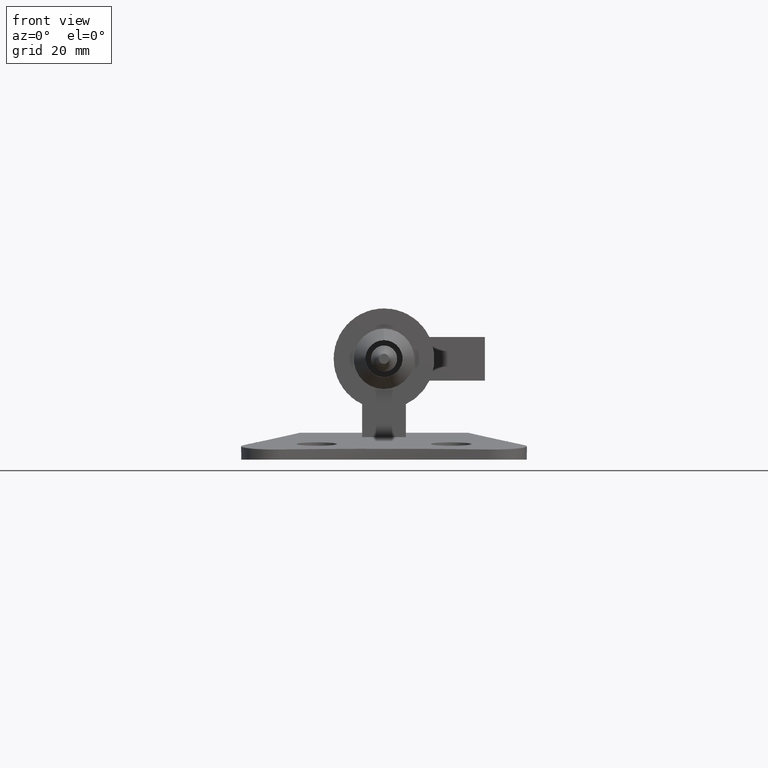
[diagram: clean part render]
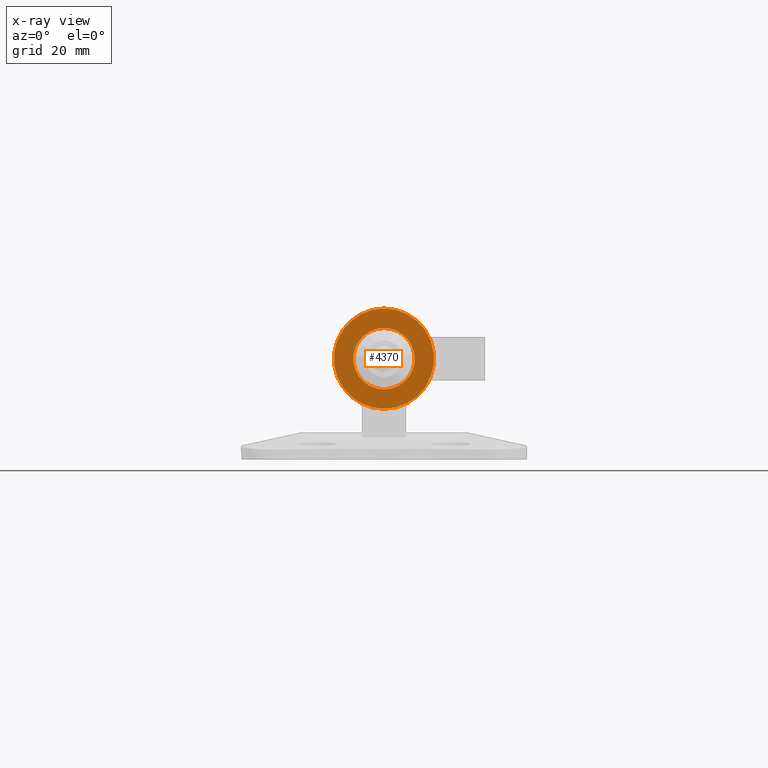
[diagram: x-ray — body ghosted, one internal face saturated and labeled with its STEP entity id]
A machine part, front view, then the same camera in x-ray: the body is ghosted and one INTERNAL B-rep face — a face not visible from any outside direction — is saturated and labeled: STEP entity #4370.
In plain terms, the highlighted planar face has unit normal (0, 1, 0).
Its self-contained STEP definition (entity closure, byte-faithful):
#45 = CARTESIAN_POINT ( 'NONE',  ( 0.000000000000000000, 3.000000000000000000, 9.125000000000000000 ) ) ;
#128 = DIRECTION ( 'NONE',  ( 0.000000000000000000, -0.000000000000000000, 1.000000000000000000 ) ) ;
#1321 = AXIS2_PLACEMENT_3D ( 'NONE', #10779, #10756, #128 ) ;
#1813 = CARTESIAN_POINT ( 'NONE',  ( 0.000000000000000000, 3.000000000000000000, 14.90000000000000036 ) ) ;
#2154 = EDGE_LOOP ( 'NONE', ( #3640 ) ) ;
#2673 = AXIS2_PLACEMENT_3D ( 'NONE', #6036, #9640, #9759 ) ;
#3058 = EDGE_CURVE ( 'NONE', #11378, #11378, #9074, .T. ) ;
#3255 = CIRCLE ( 'NONE', #2673, 14.90000000000000036 ) ;
#3640 = ORIENTED_EDGE ( 'NONE', *, *, #3058, .F. ) ;
#4370 = ADVANCED_FACE ( 'NONE', ( #6921, #10643 ), #11482, .T. ) ;
#4725 = AXIS2_PLACEMENT_3D ( 'NONE', #11207, #10303, #8487 ) ;
#6036 = CARTESIAN_POINT ( 'NONE',  ( 0.000000000000000000, 3.000000000000000000, 0.000000000000000000 ) ) ;
#6921 = FACE_OUTER_BOUND ( 'NONE', #9667, .T. ) ;
#7385 = ORIENTED_EDGE ( 'NONE', *, *, #7982, .T. ) ;
#7982 = EDGE_CURVE ( 'NONE', #10815, #10815, #3255, .T. ) ;
#8487 = DIRECTION ( 'NONE',  ( 0.000000000000000000, 0.000000000000000000, 1.000000000000000000 ) ) ;
#9074 = CIRCLE ( 'NONE', #4725, 9.125000000000000000 ) ;
#9640 = DIRECTION ( 'NONE',  ( 0.000000000000000000, 1.000000000000000000, 0.000000000000000000 ) ) ;
#9667 = EDGE_LOOP ( 'NONE', ( #7385 ) ) ;
#9759 = DIRECTION ( 'NONE',  ( 0.000000000000000000, 0.000000000000000000, 1.000000000000000000 ) ) ;
#10303 = DIRECTION ( 'NONE',  ( 0.000000000000000000, 1.000000000000000000, 0.000000000000000000 ) ) ;
#10643 = FACE_BOUND ( 'NONE', #2154, .T. ) ;
#10756 = DIRECTION ( 'NONE',  ( 0.000000000000000000, 1.000000000000000000, 0.000000000000000000 ) ) ;
#10779 = CARTESIAN_POINT ( 'NONE',  ( 0.000000000000000000, 3.000000000000000000, 0.000000000000000000 ) ) ;
#10815 = VERTEX_POINT ( 'NONE', #1813 ) ;
#11207 = CARTESIAN_POINT ( 'NONE',  ( 0.000000000000000000, 3.000000000000000000, 0.000000000000000000 ) ) ;
#11378 = VERTEX_POINT ( 'NONE', #45 ) ;
#11482 = PLANE ( 'NONE',  #1321 ) ;